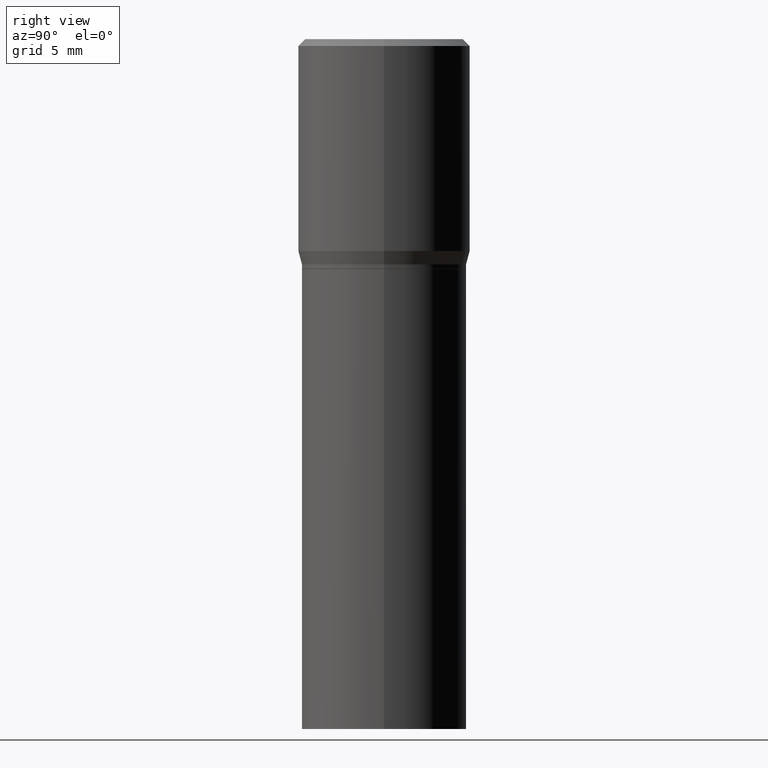
[diagram: clean part render]
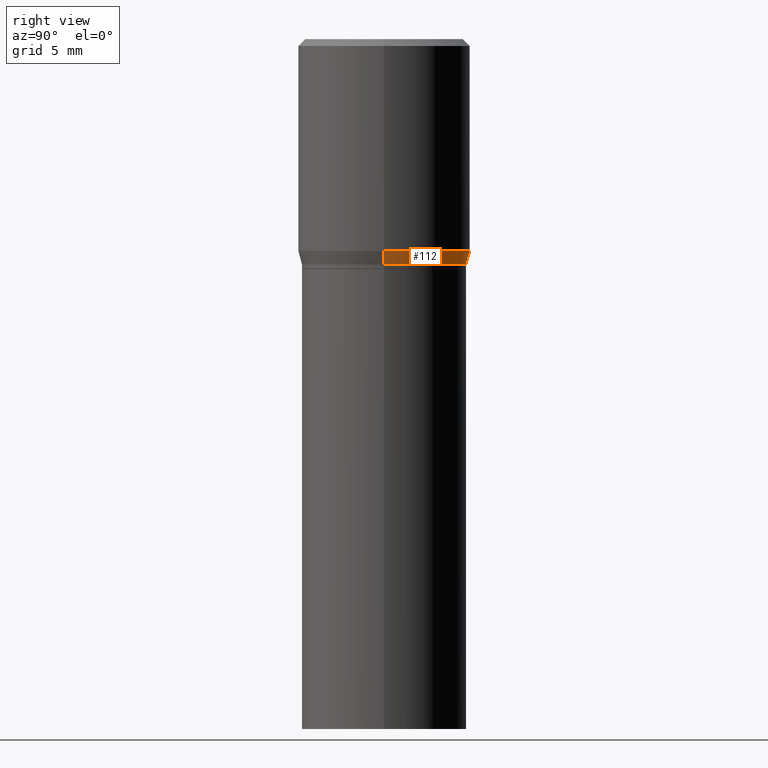
[diagram: same view with one face highlighted and labeled with its STEP entity id]
A machine part, right view. The second image highlights one B-rep face of the part: STEP entity #112.
In plain terms, the highlighted conical surface has half-angle 15 deg.
Its self-contained STEP definition (entity closure, byte-faithful):
#24 = DIRECTION ( 'NONE',  ( 1.000000000000000000, -6.982962677686265922E-15, 0.000000000000000000 ) ) ;
#29 = DIRECTION ( 'NONE',  ( -2.445468806185136597E-29, 3.491481338843145583E-15, 1.000000000000000000 ) ) ;
#40 = EDGE_CURVE ( 'NONE', #267, #359, #458, .T. ) ;
#41 = ORIENTED_EDGE ( 'NONE', *, *, #315, .T. ) ;
#58 = CARTESIAN_POINT ( 'NONE',  ( 1.198279715030717173E-29, -1.710825856033141537E-15, -0.4900000000000001021 ) ) ;
#90 = CARTESIAN_POINT ( 'NONE',  ( -0.1796999999999999986, -4.339805598722415617E-16, -0.4900000000000001021 ) ) ;
#91 = DIRECTION ( 'NONE',  ( -2.445468806185136597E-29, 3.491481338843145583E-15, 1.000000000000000000 ) ) ;
#107 = VECTOR ( 'NONE', #266, 39.37007874015747433 ) ;
#112 = ADVANCED_FACE ( 'NONE', ( #282 ), #396, .T. ) ;
#116 = EDGE_LOOP ( 'NONE', ( #41, #438, #260, #435 ) ) ;
#168 = CARTESIAN_POINT ( 'NONE',  ( 1.198279715030717173E-29, -1.710825856033141537E-15, -0.4900000000000001021 ) ) ;
#170 = AXIS2_PLACEMENT_3D ( 'NONE', #168, #91, #237 ) ;
#182 = AXIS2_PLACEMENT_3D ( 'NONE', #58, #339, #411 ) ;
#188 = CARTESIAN_POINT ( 'NONE',  ( 0.1875000000000000278, -2.918494349247435201E-15, -0.4608900037009628914 ) ) ;
#190 = VERTEX_POINT ( 'NONE', #250 ) ;
#203 = CARTESIAN_POINT ( 'NONE',  ( 0.1796999999999999986, -2.965664249213363464E-15, -0.4900000000000001021 ) ) ;
#211 = CARTESIAN_POINT ( 'NONE',  ( 1.127092127133256822E-29, -1.609188847181260193E-15, -0.4608900037009628914 ) ) ;
#237 = DIRECTION ( 'NONE',  ( 1.000000000000000000, -6.982962677686265922E-15, 0.000000000000000000 ) ) ;
#250 = CARTESIAN_POINT ( 'NONE',  ( -0.1796999999999999986, -3.554508887516567806E-16, -0.4900000000000001021 ) ) ;
#260 = ORIENTED_EDGE ( 'NONE', *, *, #40, .F. ) ;
#266 = DIRECTION ( 'NONE',  ( 0.2588190451025213501, 1.565188264969621968E-15, 0.9659258262890682012 ) ) ;
#267 = VERTEX_POINT ( 'NONE', #188 ) ;
#280 = DIRECTION ( 'NONE',  ( -0.2588190451025213501, 5.211531920934551042E-15, 0.9659258262890682012 ) ) ;
#282 = FACE_OUTER_BOUND ( 'NONE', #116, .T. ) ;
#303 = LINE ( 'NONE', #445, #107 ) ;
#304 = VERTEX_POINT ( 'NONE', #203 ) ;
#307 = CIRCLE ( 'NONE', #182, 0.1796999999999999986 ) ;
#315 = EDGE_CURVE ( 'NONE', #304, #190, #307, .T. ) ;
#339 = DIRECTION ( 'NONE',  ( -2.445468806185136597E-29, 3.491481338843145583E-15, 1.000000000000000000 ) ) ;
#356 = EDGE_CURVE ( 'NONE', #304, #267, #303, .T. ) ;
#359 = VERTEX_POINT ( 'NONE', #366 ) ;
#366 = CARTESIAN_POINT ( 'NONE',  ( -0.1875000000000000278, -2.769212176310719994E-16, -0.4608900037009628914 ) ) ;
#370 = EDGE_CURVE ( 'NONE', #190, #359, #408, .T. ) ;
#396 = CONICAL_SURFACE ( 'NONE', #170, 0.1796999999999999986, 0.2617993877991500740 ) ;
#408 = LINE ( 'NONE', #90, #426 ) ;
#411 = DIRECTION ( 'NONE',  ( 1.000000000000000000, -6.982962677686265922E-15, 0.000000000000000000 ) ) ;
#416 = AXIS2_PLACEMENT_3D ( 'NONE', #211, #29, #24 ) ;
#426 = VECTOR ( 'NONE', #280, 39.37007874015747433 ) ;
#435 = ORIENTED_EDGE ( 'NONE', *, *, #356, .F. ) ;
#438 = ORIENTED_EDGE ( 'NONE', *, *, #370, .T. ) ;
#445 = CARTESIAN_POINT ( 'NONE',  ( 0.1796999999999999986, -2.965664249213363464E-15, -0.4900000000000001021 ) ) ;
#458 = CIRCLE ( 'NONE', #416, 0.1875000000000000278 ) ;